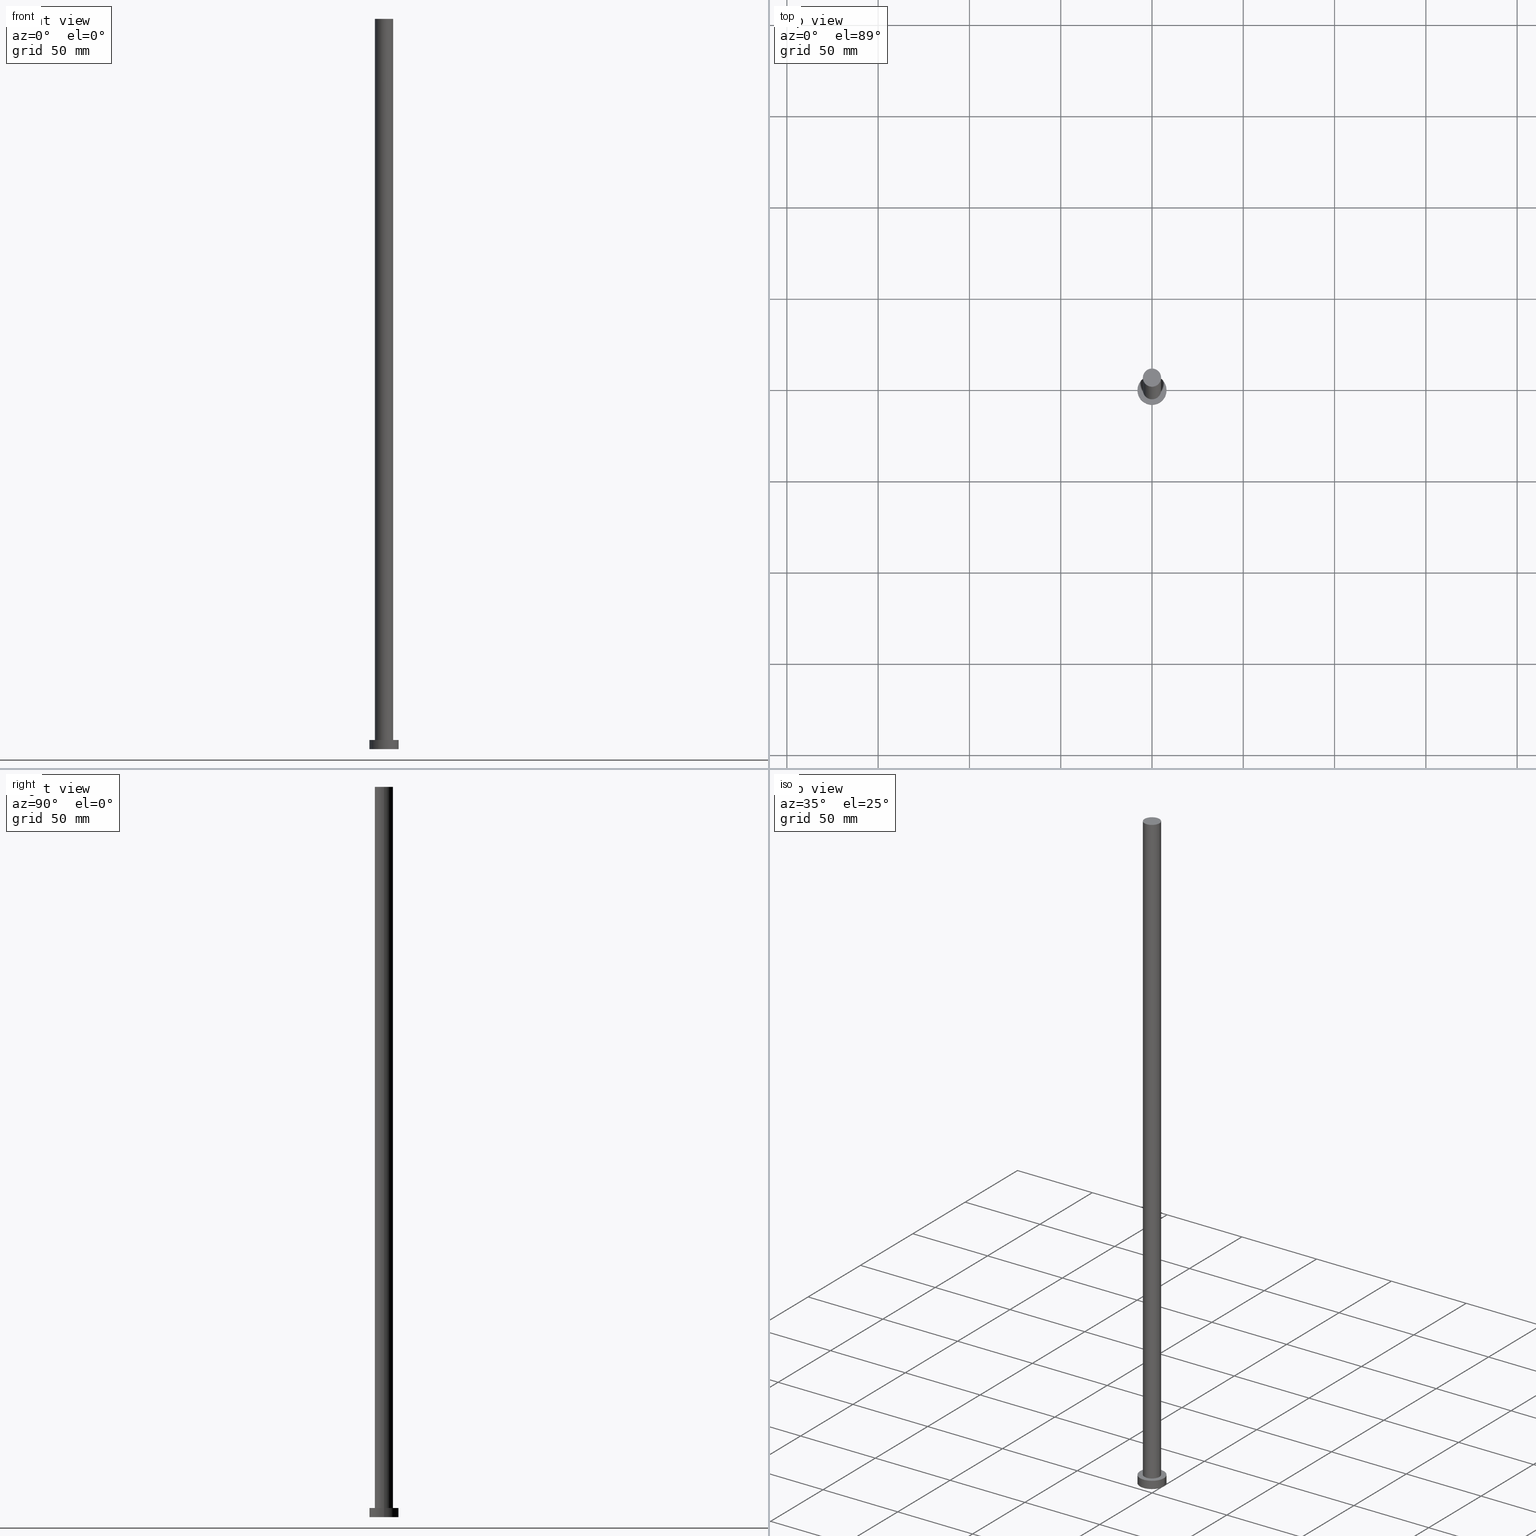
[diagram: canonical four-view strip — front | top / right | iso, engineering-drawing reading convention]
A machine part, canonical four-view strip (front | top / right | iso — engineering-drawing reading convention). The complete STEP part file that produces these views, byte-faithful:
ISO-10303-21;
HEADER;
FILE_DESCRIPTION (( 'STEP AP203' ),
    '1' );
FILE_NAME ('d771.STEP',
    '2023-02-13T13:49:12',
    ( '' ),
    ( '' ),
    'SwSTEP 2.0',
    'SolidWorks 2019',
    '' );
FILE_SCHEMA (( 'CONFIG_CONTROL_DESIGN' ));
ENDSEC;

DATA;
#1 = PERSON_AND_ORGANIZATION_ROLE ( 'design_owner' ) ;
#2 = CC_DESIGN_APPROVAL ( #187, ( #83 ) ) ;
#3 = DIRECTION ( 'NONE',  ( 0.000000000000000000, 0.000000000000000000, 1.000000000000000000 ) ) ;
#4 = AXIS2_PLACEMENT_3D ( 'NONE', #46, #73, #192 ) ;
#5 = CALENDAR_DATE ( 2023, 13, 2 ) ;
#6 = PERSON_AND_ORGANIZATION_ROLE ( 'creator' ) ;
#7 = CARTESIAN_POINT ( 'NONE',  ( 0.000000000000000000, 0.000000000000000000, 400.0000000000000000 ) ) ;
#8 = CARTESIAN_POINT ( 'NONE',  ( 0.000000000000000000, 0.000000000000000000, 5.000000000000000000 ) ) ;
#9 = APPLICATION_CONTEXT ( 'configuration controlled 3d designs of mechanical parts and assemblies' ) ;
#10 = ORIENTED_EDGE ( 'NONE', *, *, #224, .T. ) ;
#11 = EDGE_LOOP ( 'NONE', ( #62, #202, #248, #70 ) ) ;
#12 = VERTEX_POINT ( 'NONE', #197 ) ;
#13 = CARTESIAN_POINT ( 'NONE',  ( 0.000000000000000000, 0.000000000000000000, 5.000000000000000000 ) ) ;
#14 = CARTESIAN_POINT ( 'NONE',  ( 0.000000000000000000, 0.000000000000000000, 0.000000000000000000 ) ) ;
#15 = APPLICATION_PROTOCOL_DEFINITION ( 'international standard', 'config_control_design', 1994, #9 ) ;
#16 = PRODUCT_DEFINITION ( 'NEZN�M�', '', #214, #132 ) ;
#17 = CIRCLE ( 'NONE', #157, 5.000000000000000000 ) ;
#18 = DIRECTION ( 'NONE',  ( 1.000000000000000000, 0.000000000000000000, 0.000000000000000000 ) ) ;
#19 = DIRECTION ( 'NONE',  ( 0.000000000000000000, 0.000000000000000000, 1.000000000000000000 ) ) ;
#20 = PLANE ( 'NONE',  #24 ) ;
#21 = CARTESIAN_POINT ( 'NONE',  ( -5.000000000000000000, 0.000000000000000000, 400.0000000000000000 ) ) ;
#22 = ORIENTED_EDGE ( 'NONE', *, *, #239, .F. ) ;
#23 = LINE ( 'NONE', #74, #102 ) ;
#24 = AXIS2_PLACEMENT_3D ( 'NONE', #230, #170, #173 ) ;
#25 = DIRECTION ( 'NONE',  ( -0.000000000000000000, -0.000000000000000000, -1.000000000000000000 ) ) ;
#26 = EDGE_CURVE ( 'NONE', #246, #221, #237, .T. ) ;
#27 = CC_DESIGN_APPROVAL ( #60, ( #16 ) ) ;
#28 = ORIENTED_EDGE ( 'NONE', *, *, #26, .T. ) ;
#29 = FACE_OUTER_BOUND ( 'NONE', #165, .T. ) ;
#30 = AXIS2_PLACEMENT_3D ( 'NONE', #38, #241, #199 ) ;
#31 = LOCAL_TIME ( 14, 49, 12.00000000000000000, #234 ) ;
#32 = DATE_AND_TIME ( #94, #31 ) ;
#33 = LOCAL_TIME ( 14, 49, 12.00000000000000000, #174 ) ;
#34 = FACE_OUTER_BOUND ( 'NONE', #11, .T. ) ;
#35 = LOCAL_TIME ( 14, 49, 12.00000000000000000, #253 ) ;
#36 = PERSON_AND_ORGANIZATION ( #88, #193 ) ;
#37 = DIRECTION ( 'NONE',  ( -0.000000000000000000, -0.000000000000000000, -1.000000000000000000 ) ) ;
#38 = CARTESIAN_POINT ( 'NONE',  ( 0.000000000000000000, 0.000000000000000000, 5.000000000000000000 ) ) ;
#39 = AXIS2_PLACEMENT_3D ( 'NONE', #14, #222, #42 ) ;
#40 = ORIENTED_EDGE ( 'NONE', *, *, #126, .T. ) ;
#41 = PERSON_AND_ORGANIZATION_ROLE ( 'design_supplier' ) ;
#42 = DIRECTION ( 'NONE',  ( 1.000000000000000000, 0.000000000000000000, 0.000000000000000000 ) ) ;
#43 = ORIENTED_EDGE ( 'NONE', *, *, #181, .F. ) ;
#44 = DIRECTION ( 'NONE',  ( 1.000000000000000000, 0.000000000000000000, 0.000000000000000000 ) ) ;
#45 = ORIENTED_EDGE ( 'NONE', *, *, #217, .T. ) ;
#46 = CARTESIAN_POINT ( 'NONE',  ( 0.000000000000000000, 0.000000000000000000, 0.000000000000000000 ) ) ;
#47 = FACE_OUTER_BOUND ( 'NONE', #190, .T. ) ;
#48 = CARTESIAN_POINT ( 'NONE',  ( 0.000000000000000000, 0.000000000000000000, 400.0000000000000000 ) ) ;
#49 = VECTOR ( 'NONE', #93, 1000.000000000000000 ) ;
#50 = DIRECTION ( 'NONE',  ( 0.000000000000000000, 0.000000000000000000, 1.000000000000000000 ) ) ;
#51 = APPROVAL_DATE_TIME ( #113, #187 ) ;
#52 = DIRECTION ( 'NONE',  ( 1.000000000000000000, 0.000000000000000000, 0.000000000000000000 ) ) ;
#53 = ADVANCED_BREP_SHAPE_REPRESENTATION ( 'd771', ( #177, #39 ), #121 ) ;
#54 = PRODUCT_DEFINITION_SHAPE ( 'NONE', 'NONE',  #16 ) ;
#55 = AXIS2_PLACEMENT_3D ( 'NONE', #82, #228, #18 ) ;
#56 = CARTESIAN_POINT ( 'NONE',  ( -5.000000000000000000, 0.000000000000000000, 5.000000000000000000 ) ) ;
#57 = PERSON_AND_ORGANIZATION_ROLE ( 'creator' ) ;
#58 = CC_DESIGN_APPROVAL ( #144, ( #214 ) ) ;
#59 = DATE_TIME_ROLE ( 'creation_date' ) ;
#60 = APPROVAL ( #229, 'NEUR�EN�' ) ;
#61 = CYLINDRICAL_SURFACE ( 'NONE', #210, 5.000000000000000000 ) ;
#62 = ORIENTED_EDGE ( 'NONE', *, *, #78, .F. ) ;
#63 = CC_DESIGN_PERSON_AND_ORGANIZATION_ASSIGNMENT ( #232, #97, ( #83 ) ) ;
#64 = DIRECTION ( 'NONE',  ( 1.000000000000000000, 0.000000000000000000, 0.000000000000000000 ) ) ;
#65 = EDGE_LOOP ( 'NONE', ( #156, #168 ) ) ;
#66 = DIRECTION ( 'NONE',  ( -1.000000000000000000, 0.000000000000000000, 0.000000000000000000 ) ) ;
#67 = FACE_OUTER_BOUND ( 'NONE', #184, .T. ) ;
#68 = ORIENTED_EDGE ( 'NONE', *, *, #239, .T. ) ;
#69 = CARTESIAN_POINT ( 'NONE',  ( 8.000000000000000000, 9.797174393178825657E-16, 5.000000000000000000 ) ) ;
#70 = ORIENTED_EDGE ( 'NONE', *, *, #164, .F. ) ;
#71 = PERSON_AND_ORGANIZATION ( #88, #193 ) ;
#72 = AXIS2_PLACEMENT_3D ( 'NONE', #145, #223, #44 ) ;
#73 = DIRECTION ( 'NONE',  ( 0.000000000000000000, 0.000000000000000000, 1.000000000000000000 ) ) ;
#74 = CARTESIAN_POINT ( 'NONE',  ( -8.000000000000000000, 0.000000000000000000, 5.000000000000000000 ) ) ;
#75 = PLANE ( 'NONE',  #200 ) ;
#76 = DIRECTION ( 'NONE',  ( 0.000000000000000000, 0.000000000000000000, 1.000000000000000000 ) ) ;
#77 = APPLICATION_PROTOCOL_DEFINITION ( 'international standard', 'config_control_design', 1994, #118 ) ;
#78 = EDGE_CURVE ( 'NONE', #204, #107, #176, .T. ) ;
#79 = PERSON_AND_ORGANIZATION ( #88, #193 ) ;
#80 = DIRECTION ( 'NONE',  ( -1.000000000000000000, 0.000000000000000000, 0.000000000000000000 ) ) ;
#81 = ADVANCED_FACE ( 'NONE', ( #47 ), #61, .T. ) ;
#82 = CARTESIAN_POINT ( 'NONE',  ( 0.000000000000000000, 0.000000000000000000, 5.000000000000000000 ) ) ;
#83 = SECURITY_CLASSIFICATION ( '', '', #182 ) ;
#84 = CYLINDRICAL_SURFACE ( 'NONE', #127, 5.000000000000000000 ) ;
#85 = EDGE_CURVE ( 'NONE', #221, #244, #178, .T. ) ;
#86 = ORIENTED_EDGE ( 'NONE', *, *, #100, .F. ) ;
#87 = EDGE_LOOP ( 'NONE', ( #226, #28 ) ) ;
#88 = PERSON ( 'NEUR�EN�', 'NEUR�EN�', 'NEUR�EN�', ('NEUR�EN�'), ('NEUR�EN�'), ('NEUR�EN�') ) ;
#89 = DIRECTION ( 'NONE',  ( -0.000000000000000000, -0.000000000000000000, -1.000000000000000000 ) ) ;
#90 = ADVANCED_FACE ( 'NONE', ( #106 ), #84, .T. ) ;
#91 = CC_DESIGN_SECURITY_CLASSIFICATION ( #83, ( #214 ) ) ;
#92 = DIRECTION ( 'NONE',  ( 1.000000000000000000, 0.000000000000000000, -0.000000000000000000 ) ) ;
#93 = DIRECTION ( 'NONE',  ( -0.000000000000000000, -0.000000000000000000, -1.000000000000000000 ) ) ;
#94 = CALENDAR_DATE ( 2023, 13, 2 ) ;
#95 = CIRCLE ( 'NONE', #72, 5.000000000000000000 ) ;
#96 = UNCERTAINTY_MEASURE_WITH_UNIT (LENGTH_MEASURE( 1.000000000000000082E-05 ), #103, 'distance_accuracy_value', 'NONE');
#97 = PERSON_AND_ORGANIZATION_ROLE ( 'classification_officer' ) ;
#98 = CARTESIAN_POINT ( 'NONE',  ( 0.000000000000000000, 0.000000000000000000, 5.000000000000000000 ) ) ;
#99 = SHAPE_DEFINITION_REPRESENTATION ( #54, #53 ) ;
#100 = EDGE_CURVE ( 'NONE', #221, #246, #95, .T. ) ;
#101 = APPROVAL_ROLE ( '' ) ;
#102 = VECTOR ( 'NONE', #233, 1000.000000000000000 ) ;
#103 =( LENGTH_UNIT ( ) NAMED_UNIT ( * ) SI_UNIT ( .MILLI., .METRE. ) );
#104 = DIRECTION ( 'NONE',  ( 1.000000000000000000, 0.000000000000000000, 0.000000000000000000 ) ) ;
#105 = APPROVAL_STATUS ( 'not_yet_approved' ) ;
#106 = FACE_OUTER_BOUND ( 'NONE', #208, .T. ) ;
#107 = VERTEX_POINT ( 'NONE', #203 ) ;
#108 = ORIENTED_EDGE ( 'NONE', *, *, #164, .T. ) ;
#109 = APPROVAL_PERSON_ORGANIZATION ( #36, #144, #175 ) ;
#110 = ADVANCED_FACE ( 'NONE', ( #29 ), #186, .T. ) ;
#111 = CARTESIAN_POINT ( 'NONE',  ( 0.000000000000000000, 0.000000000000000000, 0.000000000000000000 ) ) ;
#112 = APPROVAL_DATE_TIME ( #206, #60 ) ;
#113 = DATE_AND_TIME ( #5, #33 ) ;
#114 = VERTEX_POINT ( 'NONE', #148 ) ;
#115 = LINE ( 'NONE', #252, #188 ) ;
#116 = APPROVAL_STATUS ( 'not_yet_approved' ) ;
#117 = DIRECTION ( 'NONE',  ( 0.000000000000000000, 0.000000000000000000, 1.000000000000000000 ) ) ;
#118 = APPLICATION_CONTEXT ( 'configuration controlled 3d designs of mechanical parts and assemblies' ) ;
#119 = PRODUCT_RELATED_PRODUCT_CATEGORY ( 'detail', '', ( #154 ) ) ;
#120 =( NAMED_UNIT ( * ) SI_UNIT ( $, .STERADIAN. ) SOLID_ANGLE_UNIT ( ) );
#121 =( GEOMETRIC_REPRESENTATION_CONTEXT ( 3 ) GLOBAL_UNCERTAINTY_ASSIGNED_CONTEXT ( ( #96 ) ) GLOBAL_UNIT_ASSIGNED_CONTEXT ( ( #103, #179, #120 ) ) REPRESENTATION_CONTEXT ( 'NONE', 'WORKASPACE' ) );
#122 = CARTESIAN_POINT ( 'NONE',  ( 0.000000000000000000, 0.000000000000000000, 0.000000000000000000 ) ) ;
#123 = VECTOR ( 'NONE', #37, 1000.000000000000000 ) ;
#124 = ORIENTED_EDGE ( 'NONE', *, *, #78, .T. ) ;
#125 = ORIENTED_EDGE ( 'NONE', *, *, #85, .T. ) ;
#126 = EDGE_CURVE ( 'NONE', #246, #114, #133, .T. ) ;
#127 = AXIS2_PLACEMENT_3D ( 'NONE', #162, #242, #66 ) ;
#128 = APPROVAL_ROLE ( '' ) ;
#129 = DIRECTION ( 'NONE',  ( -0.000000000000000000, -0.000000000000000000, -1.000000000000000000 ) ) ;
#130 = CIRCLE ( 'NONE', #231, 5.000000000000000000 ) ;
#131 = CALENDAR_DATE ( 2023, 13, 2 ) ;
#132 = DESIGN_CONTEXT ( 'detailed design', #118, 'design' ) ;
#133 = LINE ( 'NONE', #238, #49 ) ;
#134 = ORIENTED_EDGE ( 'NONE', *, *, #85, .F. ) ;
#135 = CLOSED_SHELL ( 'NONE', ( #81, #247, #110, #207, #191, #90, #212 ) ) ;
#136 = DIRECTION ( 'NONE',  ( -0.000000000000000000, -0.000000000000000000, -1.000000000000000000 ) ) ;
#137 = DATE_AND_TIME ( #158, #183 ) ;
#138 = EDGE_CURVE ( 'NONE', #204, #12, #115, .T. ) ;
#139 = PERSON_AND_ORGANIZATION ( #88, #193 ) ;
#140 = CALENDAR_DATE ( 2023, 13, 2 ) ;
#141 = AXIS2_PLACEMENT_3D ( 'NONE', #122, #3, #64 ) ;
#142 = COORDINATED_UNIVERSAL_TIME_OFFSET ( 1, 0, .AHEAD. ) ;
#143 = AXIS2_PLACEMENT_3D ( 'NONE', #111, #19, #209 ) ;
#144 = APPROVAL ( #105, 'NEUR�EN�' ) ;
#145 = CARTESIAN_POINT ( 'NONE',  ( 0.000000000000000000, 0.000000000000000000, 400.0000000000000000 ) ) ;
#146 = PLANE ( 'NONE',  #4 ) ;
#147 = ORIENTED_EDGE ( 'NONE', *, *, #126, .F. ) ;
#148 = CARTESIAN_POINT ( 'NONE',  ( 5.000000000000000000, 6.123233995736765296E-16, 5.000000000000000000 ) ) ;
#149 = EDGE_LOOP ( 'NONE', ( #68, #124 ) ) ;
#150 = CARTESIAN_POINT ( 'NONE',  ( 0.000000000000000000, 0.000000000000000000, 400.0000000000000000 ) ) ;
#151 = PERSON_AND_ORGANIZATION ( #88, #193 ) ;
#152 = FACE_OUTER_BOUND ( 'NONE', #149, .T. ) ;
#153 = APPROVAL_PERSON_ORGANIZATION ( #151, #60, #128 ) ;
#154 = PRODUCT ( 'd771', 'd771', '', ( #251 ) ) ;
#155 = CARTESIAN_POINT ( 'NONE',  ( 0.000000000000000000, 0.000000000000000000, 5.000000000000000000 ) ) ;
#156 = ORIENTED_EDGE ( 'NONE', *, *, #217, .F. ) ;
#157 = AXIS2_PLACEMENT_3D ( 'NONE', #98, #76, #104 ) ;
#158 = CALENDAR_DATE ( 2023, 13, 2 ) ;
#159 = AXIS2_PLACEMENT_3D ( 'NONE', #8, #25, #80 ) ;
#160 = CARTESIAN_POINT ( 'NONE',  ( -5.000000000000000000, 0.000000000000000000, 400.0000000000000000 ) ) ;
#161 = CC_DESIGN_PERSON_AND_ORGANIZATION_ASSIGNMENT ( #139, #41, ( #214 ) ) ;
#162 = CARTESIAN_POINT ( 'NONE',  ( 0.000000000000000000, 0.000000000000000000, 400.0000000000000000 ) ) ;
#163 = ORIENTED_EDGE ( 'NONE', *, *, #138, .F. ) ;
#164 = EDGE_CURVE ( 'NONE', #107, #201, #23, .T. ) ;
#165 = EDGE_LOOP ( 'NONE', ( #163, #22, #108, #180 ) ) ;
#166 = DIRECTION ( 'NONE',  ( -1.000000000000000000, 0.000000000000000000, 0.000000000000000000 ) ) ;
#167 = CC_DESIGN_PERSON_AND_ORGANIZATION_ASSIGNMENT ( #211, #1, ( #154 ) ) ;
#168 = ORIENTED_EDGE ( 'NONE', *, *, #224, .F. ) ;
#169 = LOCAL_TIME ( 14, 49, 12.00000000000000000, #220 ) ;
#170 = DIRECTION ( 'NONE',  ( 0.000000000000000000, 0.000000000000000000, 1.000000000000000000 ) ) ;
#171 = DATE_TIME_ROLE ( 'classification_date' ) ;
#172 = PERSON_AND_ORGANIZATION ( #88, #193 ) ;
#173 = DIRECTION ( 'NONE',  ( 1.000000000000000000, 0.000000000000000000, -0.000000000000000000 ) ) ;
#174 = COORDINATED_UNIVERSAL_TIME_OFFSET ( 1, 0, .AHEAD. ) ;
#175 = APPROVAL_ROLE ( '' ) ;
#176 = CIRCLE ( 'NONE', #55, 8.000000000000000000 ) ;
#177 = MANIFOLD_SOLID_BREP ( 'P�idat vysunut�m3', #135 ) ;
#178 = LINE ( 'NONE', #160, #123 ) ;
#179 =( NAMED_UNIT ( * ) PLANE_ANGLE_UNIT ( ) SI_UNIT ( $, .RADIAN. ) );
#180 = ORIENTED_EDGE ( 'NONE', *, *, #181, .T. ) ;
#181 = EDGE_CURVE ( 'NONE', #201, #12, #249, .T. ) ;
#182 = SECURITY_CLASSIFICATION_LEVEL ( 'unclassified' ) ;
#183 = LOCAL_TIME ( 14, 49, 12.00000000000000000, #142 ) ;
#184 = EDGE_LOOP ( 'NONE', ( #43, #185 ) ) ;
#185 = ORIENTED_EDGE ( 'NONE', *, *, #198, .F. ) ;
#186 = CYLINDRICAL_SURFACE ( 'NONE', #225, 8.000000000000000000 ) ;
#187 = APPROVAL ( #116, 'NEUR�EN�' ) ;
#188 = VECTOR ( 'NONE', #136, 1000.000000000000000 ) ;
#189 = DIRECTION ( 'NONE',  ( 0.000000000000000000, 0.000000000000000000, 1.000000000000000000 ) ) ;
#190 = EDGE_LOOP ( 'NONE', ( #250, #40, #10, #134 ) ) ;
#191 = ADVANCED_FACE ( 'NONE', ( #67 ), #146, .F. ) ;
#192 = DIRECTION ( 'NONE',  ( 1.000000000000000000, 0.000000000000000000, -0.000000000000000000 ) ) ;
#193 = ORGANIZATION ( 'NEUR�EN�', 'NEUR�EN�', '' ) ;
#194 = CARTESIAN_POINT ( 'NONE',  ( -8.000000000000000000, 0.000000000000000000, 0.000000000000000000 ) ) ;
#195 = CARTESIAN_POINT ( 'NONE',  ( 5.000000000000000000, 6.123233995736765296E-16, 400.0000000000000000 ) ) ;
#196 = AXIS2_PLACEMENT_3D ( 'NONE', #7, #117, #216 ) ;
#197 = CARTESIAN_POINT ( 'NONE',  ( 8.000000000000000000, 9.797174393178825657E-16, 0.000000000000000000 ) ) ;
#198 = EDGE_CURVE ( 'NONE', #12, #201, #240, .T. ) ;
#199 = DIRECTION ( 'NONE',  ( 1.000000000000000000, 0.000000000000000000, 0.000000000000000000 ) ) ;
#200 = AXIS2_PLACEMENT_3D ( 'NONE', #150, #189, #92 ) ;
#201 = VERTEX_POINT ( 'NONE', #194 ) ;
#202 = ORIENTED_EDGE ( 'NONE', *, *, #138, .T. ) ;
#203 = CARTESIAN_POINT ( 'NONE',  ( -8.000000000000000000, 0.000000000000000000, 5.000000000000000000 ) ) ;
#204 = VERTEX_POINT ( 'NONE', #69 ) ;
#205 = CC_DESIGN_DATE_AND_TIME_ASSIGNMENT ( #137, #59, ( #16 ) ) ;
#206 = DATE_AND_TIME ( #131, #35 ) ;
#207 = ADVANCED_FACE ( 'NONE', ( #235, #152 ), #20, .T. ) ;
#208 = EDGE_LOOP ( 'NONE', ( #147, #86, #125, #45 ) ) ;
#209 = DIRECTION ( 'NONE',  ( 1.000000000000000000, 0.000000000000000000, 0.000000000000000000 ) ) ;
#210 = AXIS2_PLACEMENT_3D ( 'NONE', #48, #129, #227 ) ;
#211 = PERSON_AND_ORGANIZATION ( #88, #193 ) ;
#212 = ADVANCED_FACE ( 'NONE', ( #254 ), #75, .T. ) ;
#213 = APPROVAL_DATE_TIME ( #215, #144 ) ;
#214 = PRODUCT_DEFINITION_FORMATION_WITH_SPECIFIED_SOURCE ( 'LIBOVOLN�', '', #154, .NOT_KNOWN. ) ;
#215 = DATE_AND_TIME ( #140, #169 ) ;
#216 = DIRECTION ( 'NONE',  ( 1.000000000000000000, 0.000000000000000000, 0.000000000000000000 ) ) ;
#217 = EDGE_CURVE ( 'NONE', #244, #114, #130, .T. ) ;
#218 = CYLINDRICAL_SURFACE ( 'NONE', #159, 8.000000000000000000 ) ;
#219 = APPROVAL_PERSON_ORGANIZATION ( #172, #187, #101 ) ;
#220 = COORDINATED_UNIVERSAL_TIME_OFFSET ( 1, 0, .AHEAD. ) ;
#221 = VERTEX_POINT ( 'NONE', #21 ) ;
#222 = DIRECTION ( 'NONE',  ( 0.000000000000000000, 0.000000000000000000, 1.000000000000000000 ) ) ;
#223 = DIRECTION ( 'NONE',  ( 0.000000000000000000, 0.000000000000000000, 1.000000000000000000 ) ) ;
#224 = EDGE_CURVE ( 'NONE', #114, #244, #17, .T. ) ;
#225 = AXIS2_PLACEMENT_3D ( 'NONE', #13, #89, #166 ) ;
#226 = ORIENTED_EDGE ( 'NONE', *, *, #100, .T. ) ;
#227 = DIRECTION ( 'NONE',  ( -1.000000000000000000, 0.000000000000000000, 0.000000000000000000 ) ) ;
#228 = DIRECTION ( 'NONE',  ( 0.000000000000000000, 0.000000000000000000, 1.000000000000000000 ) ) ;
#229 = APPROVAL_STATUS ( 'not_yet_approved' ) ;
#230 = CARTESIAN_POINT ( 'NONE',  ( 0.000000000000000000, 0.000000000000000000, 5.000000000000000000 ) ) ;
#231 = AXIS2_PLACEMENT_3D ( 'NONE', #155, #50, #52 ) ;
#232 = PERSON_AND_ORGANIZATION ( #88, #193 ) ;
#233 = DIRECTION ( 'NONE',  ( -0.000000000000000000, -0.000000000000000000, -1.000000000000000000 ) ) ;
#234 = COORDINATED_UNIVERSAL_TIME_OFFSET ( 1, 0, .AHEAD. ) ;
#235 = FACE_BOUND ( 'NONE', #65, .T. ) ;
#236 = CC_DESIGN_DATE_AND_TIME_ASSIGNMENT ( #32, #171, ( #83 ) ) ;
#237 = CIRCLE ( 'NONE', #196, 5.000000000000000000 ) ;
#238 = CARTESIAN_POINT ( 'NONE',  ( 5.000000000000000000, 6.123233995736765296E-16, 400.0000000000000000 ) ) ;
#239 = EDGE_CURVE ( 'NONE', #107, #204, #245, .T. ) ;
#240 = CIRCLE ( 'NONE', #143, 8.000000000000000000 ) ;
#241 = DIRECTION ( 'NONE',  ( 0.000000000000000000, 0.000000000000000000, 1.000000000000000000 ) ) ;
#242 = DIRECTION ( 'NONE',  ( -0.000000000000000000, -0.000000000000000000, -1.000000000000000000 ) ) ;
#243 = CC_DESIGN_PERSON_AND_ORGANIZATION_ASSIGNMENT ( #79, #57, ( #214 ) ) ;
#244 = VERTEX_POINT ( 'NONE', #56 ) ;
#245 = CIRCLE ( 'NONE', #30, 8.000000000000000000 ) ;
#246 = VERTEX_POINT ( 'NONE', #195 ) ;
#247 = ADVANCED_FACE ( 'NONE', ( #34 ), #218, .T. ) ;
#248 = ORIENTED_EDGE ( 'NONE', *, *, #198, .T. ) ;
#249 = CIRCLE ( 'NONE', #141, 8.000000000000000000 ) ;
#250 = ORIENTED_EDGE ( 'NONE', *, *, #26, .F. ) ;
#251 = MECHANICAL_CONTEXT ( 'NONE', #9, 'mechanical' ) ;
#252 = CARTESIAN_POINT ( 'NONE',  ( 8.000000000000000000, 9.797174393178825657E-16, 5.000000000000000000 ) ) ;
#253 = COORDINATED_UNIVERSAL_TIME_OFFSET ( 1, 0, .AHEAD. ) ;
#254 = FACE_OUTER_BOUND ( 'NONE', #87, .T. ) ;
#255 = CC_DESIGN_PERSON_AND_ORGANIZATION_ASSIGNMENT ( #71, #6, ( #16 ) ) ;
ENDSEC;
END-ISO-10303-21;
